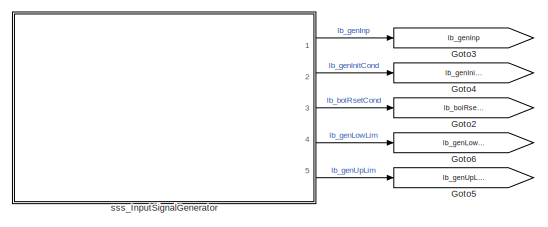
[diagram: root canvas - part 1/2, top left region]
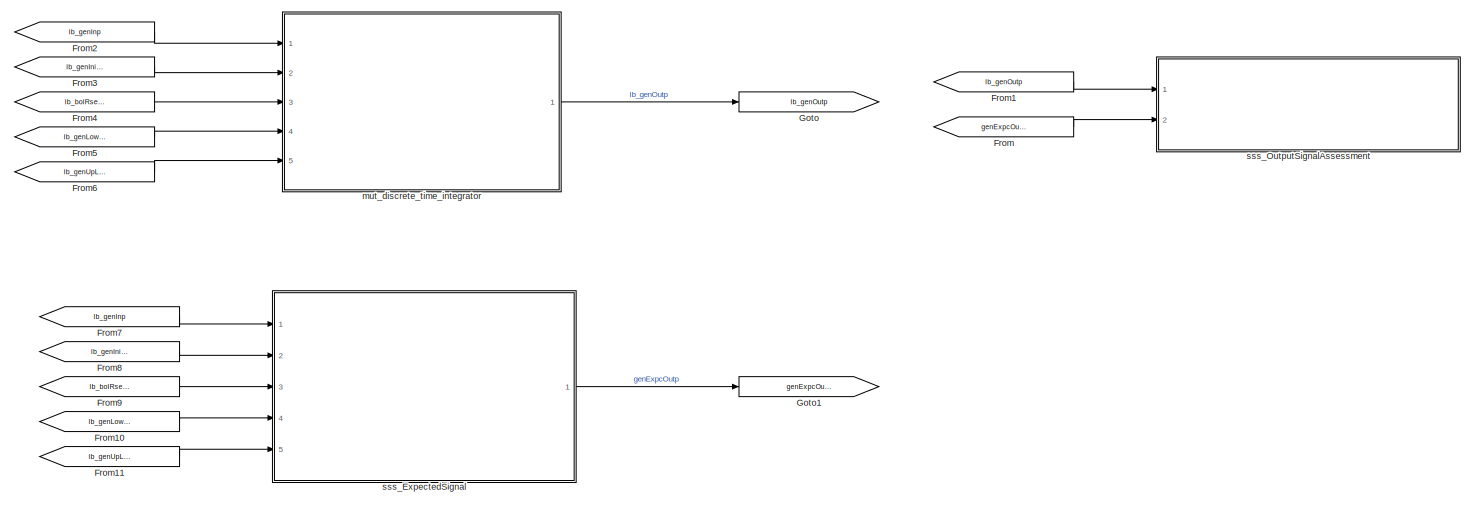
[diagram: root canvas - part 2/2, center side, full height]
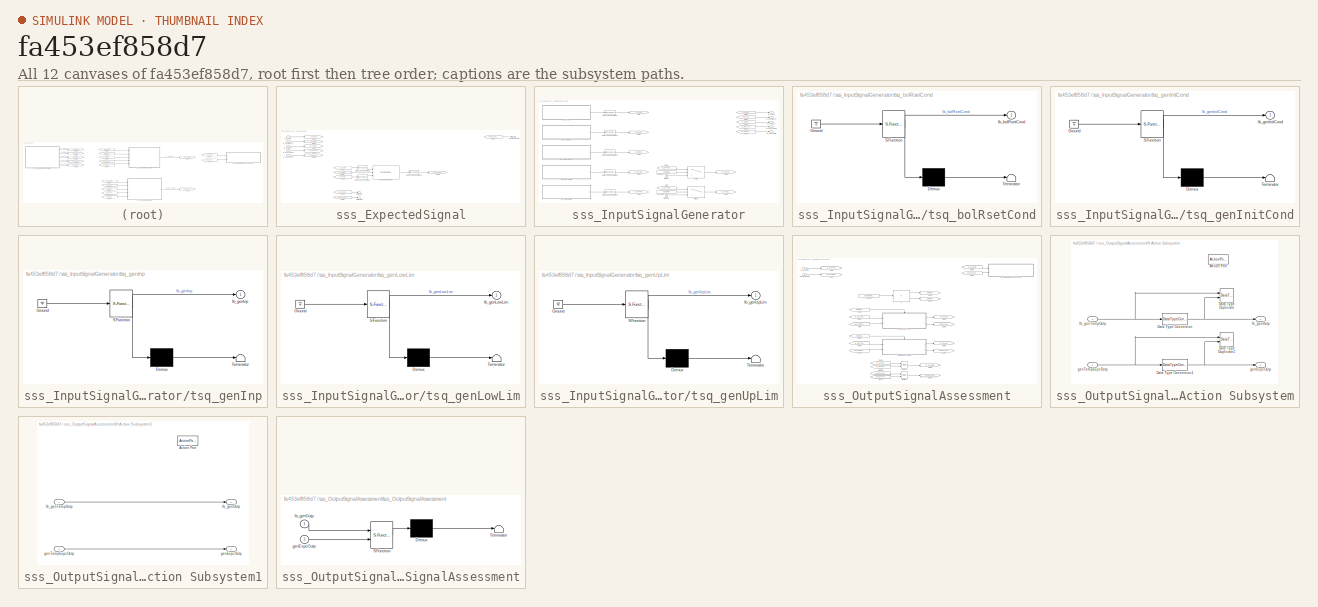
[diagram: thumbnail index - all 12 canvases of the model, root first then tree order]
MODEL slx_fa453ef858d7
KIND model
CONFIG AbsTol = auto
CONFIG EnableMultiTasking = off
CONFIG FixedStep = auto
CONFIG MaxStep = auto
CONFIG MinStep = auto
CONFIG RelTol = 1e-3
CONFIG SampleTimeConstraint = Unconstrained
CONFIG SolverName = VariableStepAuto
CONFIG StartTime = 0.0
CONFIG StopTime = 6
BLOCK [From] From
  GotoTag = genExpcOutp
BLOCK [From] From1
  GotoTag = lb_genOutp
BLOCK [From] From10
  GotoTag = lb_genLowLim
BLOCK [From] From11
  GotoTag = lb_genUpLim
BLOCK [From] From2
  GotoTag = lb_genInp
BLOCK [From] From3
  GotoTag = lb_genInitCond
BLOCK [From] From4
  GotoTag = lb_bolRsetCond
BLOCK [From] From5
  GotoTag = lb_genLowLim
BLOCK [From] From6
  GotoTag = lb_genUpLim
BLOCK [From] From7
  GotoTag = lb_genInp
BLOCK [From] From8
  GotoTag = lb_genInitCond
BLOCK [From] From9
  GotoTag = lb_bolRsetCond
BLOCK [Goto] Goto
  GotoTag = lb_genOutp
BLOCK [Goto] Goto1
  GotoTag = genExpcOutp
BLOCK [Goto] Goto2
  GotoTag = lb_bolRsetCond
BLOCK [Goto] Goto3
  GotoTag = lb_genInp
BLOCK [Goto] Goto4
  GotoTag = lb_genInitCond
BLOCK [Goto] Goto5
  GotoTag = lb_genUpLim
BLOCK [Goto] Goto6
  GotoTag = lb_genLowLim
BLOCK [ModelReference] mut_discrete_time_integrator
  ModelNameDialog = mut_discrete_time_integrator
  ModelReferenceVersion = 1.22
  Ports = [5, 1]
BLOCK [SubSystem] sss_ExpectedSignal
  Ports = [5, 1]
  RequestExecContextInheritance = off
BLOCK [DataTypeConversion] sss_ExpectedSignal/Data Type Conversion
  OutDataTypeStr = double
  RndMeth = Floor
  SaturateOnIntegerOverflow = off
BLOCK [DataTypeConversion] sss_ExpectedSignal/Data Type Conversion1
  OutDataTypeStr = double
  RndMeth = Floor
  SaturateOnIntegerOverflow = off
BLOCK [DataTypeConversion] sss_ExpectedSignal/Data Type Conversion2
  OutDataTypeStr = parOutpDataType
  RndMeth = Floor
  SaturateOnIntegerOverflow = off
BLOCK [DiscreteIntegrator] sss_ExpectedSignal/Discrete-Time Integrator
  ExternalReset = level
  ICPrevOutput = DiscIntNeverNeededParam
  ICPrevScaledInput = DiscIntNeverNeededParam
  InitialConditionSetting = Auto
  InitialConditionSource = external
  LimitOutput = on
  LowerSaturationLimit = double(parLowLimInitVal)
  Ports = [3, 1]
  SampleTime = double(parSampTime)
  UpperSaturationLimit = double(parUpLimInitVal)
  gainval = double(parIntgGain)
BLOCK [From] sss_ExpectedSignal/From
  GotoTag = lb_genInp
BLOCK [From] sss_ExpectedSignal/From1
  GotoTag = lb_genInitCond
BLOCK [From] sss_ExpectedSignal/From2
  GotoTag = lb_bolRsetCond
BLOCK [From] sss_ExpectedSignal/From3
  GotoTag = genExpcOutp
BLOCK [From] sss_ExpectedSignal/From4
  GotoTag = lb_genLowLim
BLOCK [From] sss_ExpectedSignal/From5
  GotoTag = lb_genUpLim
BLOCK [Goto] sss_ExpectedSignal/Goto
  GotoTag = lb_bolRsetCond
BLOCK [Goto] sss_ExpectedSignal/Goto1
  GotoTag = lb_genInp
BLOCK [Goto] sss_ExpectedSignal/Goto2
  GotoTag = lb_genInitCond
BLOCK [Goto] sss_ExpectedSignal/Goto3
  GotoTag = lb_genUpLim
BLOCK [Goto] sss_ExpectedSignal/Goto4
  GotoTag = lb_genLowLim
BLOCK [Goto] sss_ExpectedSignal/Goto5
  GotoTag = genExpcOutp
BLOCK [Terminator] sss_ExpectedSignal/Terminator
BLOCK [Terminator] sss_ExpectedSignal/Terminator1
BLOCK [Outport] sss_ExpectedSignal/genExpcOutp
BLOCK [Inport] sss_ExpectedSignal/lb_bolRset
  Port = 3
BLOCK [Inport] sss_ExpectedSignal/lb_genInitCond
  Port = 2
BLOCK [Inport] sss_ExpectedSignal/lb_genInp
BLOCK [Inport] sss_ExpectedSignal/lb_genLowLim
  Port = 4
BLOCK [Inport] sss_ExpectedSignal/lb_genUpLim
  Port = 5
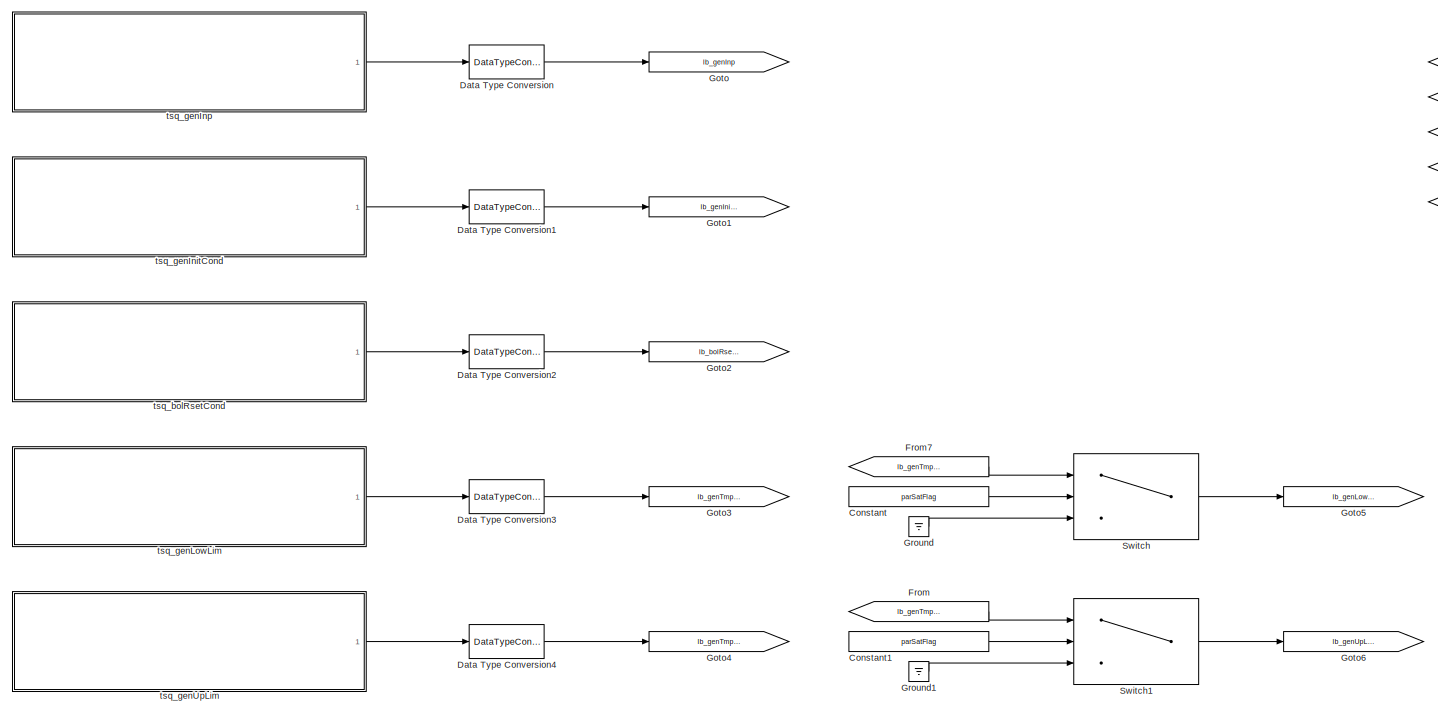
[diagram: sss_InputSignalGenerator - part 1/2, most of the canvas]
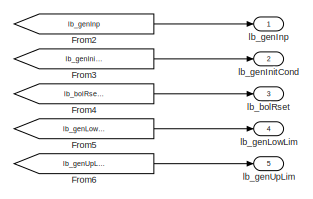
[diagram: sss_InputSignalGenerator - part 2/2, top right region]
BLOCK [SubSystem] sss_InputSignalGenerator
  Ports = [0, 5]
  RequestExecContextInheritance = off
BLOCK [Constant] sss_InputSignalGenerator/Constant
  Value = parSatFlag
BLOCK [Constant] sss_InputSignalGenerator/Constant1
  Value = parSatFlag
BLOCK [DataTypeConversion] sss_InputSignalGenerator/Data Type Conversion
  OutDataTypeStr = parInpDataType
  RndMeth = Floor
  SaturateOnIntegerOverflow = off
BLOCK [DataTypeConversion] sss_InputSignalGenerator/Data Type Conversion1
  OutDataTypeStr = parOutpDataType
  RndMeth = Floor
  SaturateOnIntegerOverflow = off
BLOCK [DataTypeConversion] sss_InputSignalGenerator/Data Type Conversion2
  OutDataTypeStr = boolean
  RndMeth = Floor
  SaturateOnIntegerOverflow = off
BLOCK [DataTypeConversion] sss_InputSignalGenerator/Data Type Conversion3
  OutDataTypeStr = parOutpDataType
  RndMeth = Floor
  SaturateOnIntegerOverflow = off
BLOCK [DataTypeConversion] sss_InputSignalGenerator/Data Type Conversion4
  OutDataTypeStr = parOutpDataType
  RndMeth = Floor
  SaturateOnIntegerOverflow = off
BLOCK [From] sss_InputSignalGenerator/From
  GotoTag = lb_genTmprUpLim
BLOCK [From] sss_InputSignalGenerator/From2
  GotoTag = lb_genInp
BLOCK [From] sss_InputSignalGenerator/From3
  GotoTag = lb_genInitCond
BLOCK [From] sss_InputSignalGenerator/From4
  GotoTag = lb_bolRsetCond
BLOCK [From] sss_InputSignalGenerator/From5
  GotoTag = lb_genLowLim
BLOCK [From] sss_InputSignalGenerator/From6
  GotoTag = lb_genUpLim
BLOCK [From] sss_InputSignalGenerator/From7
  GotoTag = lb_genTmprLowLim
BLOCK [Goto] sss_InputSignalGenerator/Goto
  GotoTag = lb_genInp
BLOCK [Goto] sss_InputSignalGenerator/Goto1
  GotoTag = lb_genInitCond
BLOCK [Goto] sss_InputSignalGenerator/Goto2
  GotoTag = lb_bolRsetCond
BLOCK [Goto] sss_InputSignalGenerator/Goto3
  GotoTag = lb_genTmprLowLim
BLOCK [Goto] sss_InputSignalGenerator/Goto4
  GotoTag = lb_genTmprUpLim
BLOCK [Goto] sss_InputSignalGenerator/Goto5
  GotoTag = lb_genLowLim
BLOCK [Goto] sss_InputSignalGenerator/Goto6
  GotoTag = lb_genUpLim
BLOCK [Ground] sss_InputSignalGenerator/Ground
BLOCK [Ground] sss_InputSignalGenerator/Ground1
BLOCK [Switch] sss_InputSignalGenerator/Switch
  Criteria = u2 ~= 0
  InputSameDT = off
  SaturateOnIntegerOverflow = off
BLOCK [Switch] sss_InputSignalGenerator/Switch1
  Criteria = u2 ~= 0
  InputSameDT = off
  SaturateOnIntegerOverflow = off
BLOCK [Outport] sss_InputSignalGenerator/lb_bolRset
  Port = 3
BLOCK [Outport] sss_InputSignalGenerator/lb_genInitCond
  Port = 2
BLOCK [Outport] sss_InputSignalGenerator/lb_genInp
BLOCK [Outport] sss_InputSignalGenerator/lb_genLowLim
  Port = 4
BLOCK [Outport] sss_InputSignalGenerator/lb_genUpLim
  Port = 5
BLOCK [SubSystem] sss_InputSignalGenerator/tsq_bolRsetCond
  ErrorFcn = Stateflow.Translate.translate
  PermitHierarchicalResolution = ExplicitOnly
  Ports = [0, 1]
  RequestExecContextInheritance = off
  SFBlockType = Test Sequence
  TreatAsAtomicUnit = on
BLOCK [Demux] sss_InputSignalGenerator/tsq_bolRsetCond/ Demux 
  Outputs = 1
  Ports = [1, 1]
BLOCK [Ground] sss_InputSignalGenerator/tsq_bolRsetCond/ Ground 
BLOCK [S-Function] sss_InputSignalGenerator/tsq_bolRsetCond/ SFunction 
  EnableBusSupport = on
  FunctionName = sf_sfun
  Parameters = parRsetCondInitVal,parTestProcRsetCondIndx
  PortCounts = [1 2]
  Ports = [1, 2]
  SFcnIsStateOwnerBlock = off
  SFunctionDeploymentMode = off
  Tag = Stateflow S-Function 3
BLOCK [Terminator] sss_InputSignalGenerator/tsq_bolRsetCond/ Terminator 
BLOCK [Outport] sss_InputSignalGenerator/tsq_bolRsetCond/lb_bolRsetCond
BLOCK [SubSystem] sss_InputSignalGenerator/tsq_genInitCond
  ErrorFcn = Stateflow.Translate.translate
  PermitHierarchicalResolution = ExplicitOnly
  Ports = [0, 1]
  RequestExecContextInheritance = off
  SFBlockType = Test Sequence
  TreatAsAtomicUnit = on
BLOCK [Demux] sss_InputSignalGenerator/tsq_genInitCond/ Demux 
  Outputs = 1
  Ports = [1, 1]
BLOCK [Ground] sss_InputSignalGenerator/tsq_genInitCond/ Ground 
BLOCK [S-Function] sss_InputSignalGenerator/tsq_genInitCond/ SFunction 
  EnableBusSupport = on
  FunctionName = sf_sfun
  Parameters = parInitCondInitVal,parTestProcInitCondIndx
  PortCounts = [1 2]
  Ports = [1, 2]
  SFcnIsStateOwnerBlock = off
  SFunctionDeploymentMode = off
  Tag = Stateflow S-Function 2
BLOCK [Terminator] sss_InputSignalGenerator/tsq_genInitCond/ Terminator 
BLOCK [Outport] sss_InputSignalGenerator/tsq_genInitCond/lb_genInitCond
BLOCK [SubSystem] sss_InputSignalGenerator/tsq_genInp
  ErrorFcn = Stateflow.Translate.translate
  PermitHierarchicalResolution = ExplicitOnly
  Ports = [0, 1]
  RequestExecContextInheritance = off
  SFBlockType = Test Sequence
  TreatAsAtomicUnit = on
BLOCK [Demux] sss_InputSignalGenerator/tsq_genInp/ Demux 
  Outputs = 1
  Ports = [1, 1]
BLOCK [Ground] sss_InputSignalGenerator/tsq_genInp/ Ground 
BLOCK [S-Function] sss_InputSignalGenerator/tsq_genInp/ SFunction 
  EnableBusSupport = on
  FunctionName = sf_sfun
  Parameters = parInpInitVal,parTestProcInpIndx
  PortCounts = [1 2]
  Ports = [1, 2]
  SFcnIsStateOwnerBlock = off
  SFunctionDeploymentMode = off
  Tag = Stateflow S-Function 4
BLOCK [Terminator] sss_InputSignalGenerator/tsq_genInp/ Terminator 
BLOCK [Outport] sss_InputSignalGenerator/tsq_genInp/lb_genInp
BLOCK [SubSystem] sss_InputSignalGenerator/tsq_genLowLim
  ErrorFcn = Stateflow.Translate.translate
  PermitHierarchicalResolution = ExplicitOnly
  Ports = [0, 1]
  RequestExecContextInheritance = off
  SFBlockType = Test Sequence
  TreatAsAtomicUnit = on
BLOCK [Demux] sss_InputSignalGenerator/tsq_genLowLim/ Demux 
  Outputs = 1
  Ports = [1, 1]
BLOCK [Ground] sss_InputSignalGenerator/tsq_genLowLim/ Ground 
BLOCK [S-Function] sss_InputSignalGenerator/tsq_genLowLim/ SFunction 
  EnableBusSupport = on
  FunctionName = sf_sfun
  Parameters = parLowLimInitVal,parTestProcLowLimIndx
  PortCounts = [1 2]
  Ports = [1, 2]
  SFcnIsStateOwnerBlock = off
  SFunctionDeploymentMode = off
  Tag = Stateflow S-Function 5
BLOCK [Terminator] sss_InputSignalGenerator/tsq_genLowLim/ Terminator 
BLOCK [Outport] sss_InputSignalGenerator/tsq_genLowLim/lb_genLowLim
BLOCK [SubSystem] sss_InputSignalGenerator/tsq_genUpLim
  ErrorFcn = Stateflow.Translate.translate
  PermitHierarchicalResolution = ExplicitOnly
  Ports = [0, 1]
  RequestExecContextInheritance = off
  SFBlockType = Test Sequence
  TreatAsAtomicUnit = on
BLOCK [Demux] sss_InputSignalGenerator/tsq_genUpLim/ Demux 
  Outputs = 1
  Ports = [1, 1]
BLOCK [Ground] sss_InputSignalGenerator/tsq_genUpLim/ Ground 
BLOCK [S-Function] sss_InputSignalGenerator/tsq_genUpLim/ SFunction 
  EnableBusSupport = on
  FunctionName = sf_sfun
  Parameters = parTestProcUpLimIndx,parUpLimInitVal
  PortCounts = [1 2]
  Ports = [1, 2]
  SFcnIsStateOwnerBlock = off
  SFunctionDeploymentMode = off
  Tag = Stateflow S-Function 7
BLOCK [Terminator] sss_InputSignalGenerator/tsq_genUpLim/ Terminator 
BLOCK [Outport] sss_InputSignalGenerator/tsq_genUpLim/lb_genUpLim
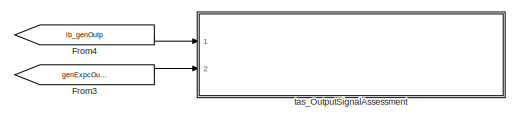
[diagram: sss_OutputSignalAssessment - part 1/3, top right region]
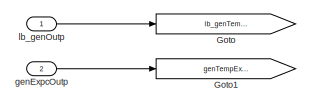
[diagram: sss_OutputSignalAssessment - part 2/3, top left region]
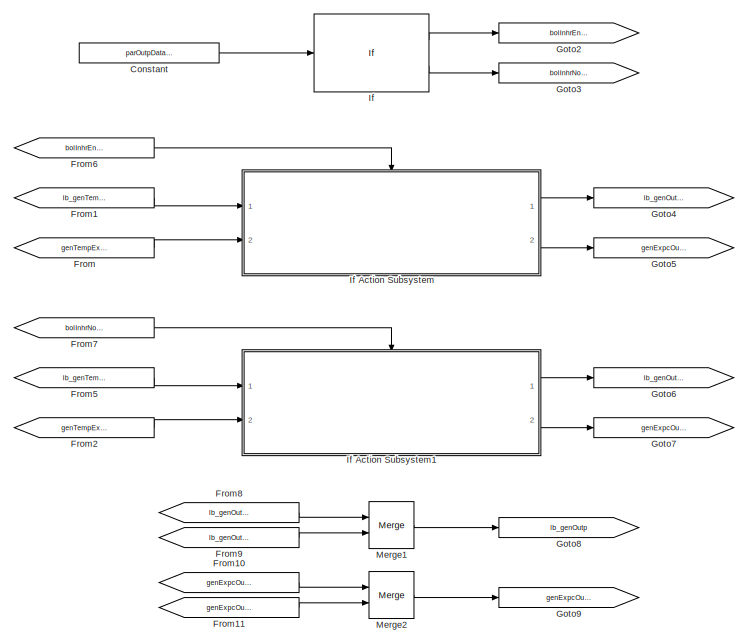
[diagram: sss_OutputSignalAssessment - part 3/3, center side, full height]
BLOCK [SubSystem] sss_OutputSignalAssessment
  Ports = [2]
  RequestExecContextInheritance = off
BLOCK [Constant] sss_OutputSignalAssessment/Constant
  Value = parOutpDataTypeInhrFlag
BLOCK [From] sss_OutputSignalAssessment/From
  GotoTag = genTempExpcOutp
BLOCK [From] sss_OutputSignalAssessment/From1
  GotoTag = lb_genTempOutp
BLOCK [From] sss_OutputSignalAssessment/From10
  GotoTag = genExpcOutp1
BLOCK [From] sss_OutputSignalAssessment/From11
  GotoTag = genExpcOutp2
BLOCK [From] sss_OutputSignalAssessment/From2
  GotoTag = genTempExpcOutp
BLOCK [From] sss_OutputSignalAssessment/From3
  GotoTag = genExpcOutp
BLOCK [From] sss_OutputSignalAssessment/From4
  GotoTag = lb_genOutp
BLOCK [From] sss_OutputSignalAssessment/From5
  GotoTag = lb_genTempOutp
BLOCK [From] sss_OutputSignalAssessment/From6
  GotoTag = bolInhrEnbl
BLOCK [From] sss_OutputSignalAssessment/From7
  GotoTag = bolInhrNotEnbl
BLOCK [From] sss_OutputSignalAssessment/From8
  GotoTag = lb_genOutp1
BLOCK [From] sss_OutputSignalAssessment/From9
  GotoTag = lb_genOutp2
BLOCK [Goto] sss_OutputSignalAssessment/Goto
  GotoTag = lb_genTempOutp
BLOCK [Goto] sss_OutputSignalAssessment/Goto1
  GotoTag = genTempExpcOutp
BLOCK [Goto] sss_OutputSignalAssessment/Goto2
  GotoTag = bolInhrEnbl
BLOCK [Goto] sss_OutputSignalAssessment/Goto3
  GotoTag = bolInhrNotEnbl
BLOCK [Goto] sss_OutputSignalAssessment/Goto4
  GotoTag = lb_genOutp1
BLOCK [Goto] sss_OutputSignalAssessment/Goto5
  GotoTag = genExpcOutp1
BLOCK [Goto] sss_OutputSignalAssessment/Goto6
  GotoTag = lb_genOutp2
BLOCK [Goto] sss_OutputSignalAssessment/Goto7
  GotoTag = genExpcOutp2
BLOCK [Goto] sss_OutputSignalAssessment/Goto8
  GotoTag = lb_genOutp
BLOCK [Goto] sss_OutputSignalAssessment/Goto9
  GotoTag = genExpcOutp
BLOCK [If] sss_OutputSignalAssessment/If
  IfExpression = u1
  Ports = [1, 2]
BLOCK [SubSystem] sss_OutputSignalAssessment/If Action Subsystem
  Ports = [2, 2, 0, 0, 0, 0, 0, 1]
  RequestExecContextInheritance = off
  TreatAsAtomicUnit = on
BLOCK [ActionPort] sss_OutputSignalAssessment/If Action Subsystem/Action Port
  ActionPortLabel = if(u1)
BLOCK [DataTypeConversion] sss_OutputSignalAssessment/If Action Subsystem/Data Type Conversion
  OutDataTypeStr = parOutpDataTypeInhr
  RndMeth = Floor
  SaturateOnIntegerOverflow = off
BLOCK [DataTypeConversion] sss_OutputSignalAssessment/If Action Subsystem/Data Type Conversion1
  OutDataTypeStr = parOutpDataTypeInhr
  RndMeth = Floor
  SaturateOnIntegerOverflow = off
BLOCK [DataTypeDuplicate] sss_OutputSignalAssessment/If Action Subsystem/Data Type Duplicate
  Ports = [2]
BLOCK [DataTypeDuplicate] sss_OutputSignalAssessment/If Action Subsystem/Data Type Duplicate1
  Ports = [2]
BLOCK [Outport] sss_OutputSignalAssessment/If Action Subsystem/genExpcOutp
  Port = 2
BLOCK [Inport] sss_OutputSignalAssessment/If Action Subsystem/genTempExpcOutp
  Port = 2
BLOCK [Outport] sss_OutputSignalAssessment/If Action Subsystem/lb_genOutp
BLOCK [Inport] sss_OutputSignalAssessment/If Action Subsystem/lb_genTempOutp
BLOCK [SubSystem] sss_OutputSignalAssessment/If Action Subsystem1
  Ports = [2, 2, 0, 0, 0, 0, 0, 1]
  RequestExecContextInheritance = off
  TreatAsAtomicUnit = on
BLOCK [ActionPort] sss_OutputSignalAssessment/If Action Subsystem1/Action Port
  ActionPortLabel = else
BLOCK [Outport] sss_OutputSignalAssessment/If Action Subsystem1/genExpcOutp
  Port = 2
BLOCK [Inport] sss_OutputSignalAssessment/If Action Subsystem1/genTempExpcOutp
  Port = 2
BLOCK [Outport] sss_OutputSignalAssessment/If Action Subsystem1/lb_genOutp
BLOCK [Inport] sss_OutputSignalAssessment/If Action Subsystem1/lb_genTempOutp
BLOCK [Merge] sss_OutputSignalAssessment/Merge1
  Ports = [2, 1]
BLOCK [Merge] sss_OutputSignalAssessment/Merge2
  Ports = [2, 1]
BLOCK [Inport] sss_OutputSignalAssessment/genExpcOutp
  Port = 2
BLOCK [Inport] sss_OutputSignalAssessment/lb_genOutp
BLOCK [SubSystem] sss_OutputSignalAssessment/tas_OutputSignalAssessment
  ErrorFcn = Stateflow.Translate.translate
  PermitHierarchicalResolution = ExplicitOnly
  Ports = [2]
  RequestExecContextInheritance = off
  SFBlockType = Test Sequence
  TreatAsAtomicUnit = on
BLOCK [Demux] sss_OutputSignalAssessment/tas_OutputSignalAssessment/ Demux 
  Outputs = 1
  Ports = [1, 1]
BLOCK [S-Function] sss_OutputSignalAssessment/tas_OutputSignalAssessment/ SFunction 
  EnableBusSupport = on
  FunctionName = sf_sfun
  Parameters = parTestTol
  PortCounts = [2 1]
  Ports = [2, 1]
  SFcnIsStateOwnerBlock = off
  SFunctionDeploymentMode = off
  Tag = Stateflow S-Function 1
BLOCK [Terminator] sss_OutputSignalAssessment/tas_OutputSignalAssessment/ Terminator 
BLOCK [Inport] sss_OutputSignalAssessment/tas_OutputSignalAssessment/genExpcOutp
  Port = 2
BLOCK [Inport] sss_OutputSignalAssessment/tas_OutputSignalAssessment/lb_genOutp
LINE From10:1 -> sss_ExpectedSignal:4
LINE From11:1 -> sss_ExpectedSignal:5
LINE From1:1 -> sss_OutputSignalAssessment:1
LINE From2:1 -> mut_discrete_time_integrator:1
LINE From3:1 -> mut_discrete_time_integrator:2
LINE From4:1 -> mut_discrete_time_integrator:3
LINE From5:1 -> mut_discrete_time_integrator:4
LINE From6:1 -> mut_discrete_time_integrator:5
LINE From7:1 -> sss_ExpectedSignal:1
LINE From8:1 -> sss_ExpectedSignal:2
LINE From9:1 -> sss_ExpectedSignal:3
LINE From:1 -> sss_OutputSignalAssessment:2
LINE mut_discrete_time_integrator:1 -> Goto:1
LINE sss_ExpectedSignal/Data Type Conversion1:1 -> sss_ExpectedSignal/Discrete-Time Integrator:3
LINE sss_ExpectedSignal/Data Type Conversion2:1 -> sss_ExpectedSignal/Goto5:1
LINE sss_ExpectedSignal/Data Type Conversion:1 -> sss_ExpectedSignal/Discrete-Time Integrator:1
LINE sss_ExpectedSignal/Discrete-Time Integrator:1 -> sss_ExpectedSignal/Data Type Conversion2:1
LINE sss_ExpectedSignal/From1:1 -> sss_ExpectedSignal/Data Type Conversion1:1
LINE sss_ExpectedSignal/From2:1 -> sss_ExpectedSignal/Discrete-Time Integrator:2
LINE sss_ExpectedSignal/From3:1 -> sss_ExpectedSignal/genExpcOutp:1
LINE sss_ExpectedSignal/From4:1 -> sss_ExpectedSignal/Terminator:1
LINE sss_ExpectedSignal/From5:1 -> sss_ExpectedSignal/Terminator1:1
LINE sss_ExpectedSignal/From:1 -> sss_ExpectedSignal/Data Type Conversion:1
LINE sss_ExpectedSignal/lb_bolRset:1 -> sss_ExpectedSignal/Goto:1
LINE sss_ExpectedSignal/lb_genInitCond:1 -> sss_ExpectedSignal/Goto2:1
LINE sss_ExpectedSignal/lb_genInp:1 -> sss_ExpectedSignal/Goto1:1
LINE sss_ExpectedSignal/lb_genLowLim:1 -> sss_ExpectedSignal/Goto4:1
LINE sss_ExpectedSignal/lb_genUpLim:1 -> sss_ExpectedSignal/Goto3:1
LINE sss_ExpectedSignal:1 -> Goto1:1
LINE sss_InputSignalGenerator/Constant1:1 -> sss_InputSignalGenerator/Switch1:2
LINE sss_InputSignalGenerator/Constant:1 -> sss_InputSignalGenerator/Switch:2
LINE sss_InputSignalGenerator/Data Type Conversion1:1 -> sss_InputSignalGenerator/Goto1:1
LINE sss_InputSignalGenerator/Data Type Conversion2:1 -> sss_InputSignalGenerator/Goto2:1
LINE sss_InputSignalGenerator/Data Type Conversion3:1 -> sss_InputSignalGenerator/Goto3:1
LINE sss_InputSignalGenerator/Data Type Conversion4:1 -> sss_InputSignalGenerator/Goto4:1
LINE sss_InputSignalGenerator/Data Type Conversion:1 -> sss_InputSignalGenerator/Goto:1
LINE sss_InputSignalGenerator/From2:1 -> sss_InputSignalGenerator/lb_genInp:1
LINE sss_InputSignalGenerator/From3:1 -> sss_InputSignalGenerator/lb_genInitCond:1
LINE sss_InputSignalGenerator/From4:1 -> sss_InputSignalGenerator/lb_bolRset:1
LINE sss_InputSignalGenerator/From5:1 -> sss_InputSignalGenerator/lb_genLowLim:1
LINE sss_InputSignalGenerator/From6:1 -> sss_InputSignalGenerator/lb_genUpLim:1
LINE sss_InputSignalGenerator/From7:1 -> sss_InputSignalGenerator/Switch:1
LINE sss_InputSignalGenerator/From:1 -> sss_InputSignalGenerator/Switch1:1
LINE sss_InputSignalGenerator/Ground1:1 -> sss_InputSignalGenerator/Switch1:3
LINE sss_InputSignalGenerator/Ground:1 -> sss_InputSignalGenerator/Switch:3
LINE sss_InputSignalGenerator/Switch1:1 -> sss_InputSignalGenerator/Goto6:1
LINE sss_InputSignalGenerator/Switch:1 -> sss_InputSignalGenerator/Goto5:1
LINE sss_InputSignalGenerator/tsq_bolRsetCond:1 -> sss_InputSignalGenerator/Data Type Conversion2:1
LINE sss_InputSignalGenerator/tsq_genInitCond:1 -> sss_InputSignalGenerator/Data Type Conversion1:1
LINE sss_InputSignalGenerator/tsq_genInp:1 -> sss_InputSignalGenerator/Data Type Conversion:1
LINE sss_InputSignalGenerator/tsq_genLowLim:1 -> sss_InputSignalGenerator/Data Type Conversion3:1
LINE sss_InputSignalGenerator/tsq_genUpLim:1 -> sss_InputSignalGenerator/Data Type Conversion4:1
LINE sss_InputSignalGenerator:1 -> Goto3:1
LINE sss_InputSignalGenerator:2 -> Goto4:1
LINE sss_InputSignalGenerator:3 -> Goto2:1
LINE sss_InputSignalGenerator:4 -> Goto6:1
LINE sss_InputSignalGenerator:5 -> Goto5:1
LINE sss_OutputSignalAssessment/Constant:1 -> sss_OutputSignalAssessment/If:1
LINE sss_OutputSignalAssessment/From10:1 -> sss_OutputSignalAssessment/Merge2:1
LINE sss_OutputSignalAssessment/From11:1 -> sss_OutputSignalAssessment/Merge2:2
LINE sss_OutputSignalAssessment/From1:1 -> sss_OutputSignalAssessment/If Action Subsystem:1
LINE sss_OutputSignalAssessment/From2:1 -> sss_OutputSignalAssessment/If Action Subsystem1:2
LINE sss_OutputSignalAssessment/From3:1 -> sss_OutputSignalAssessment/tas_OutputSignalAssessment:2
LINE sss_OutputSignalAssessment/From4:1 -> sss_OutputSignalAssessment/tas_OutputSignalAssessment:1
LINE sss_OutputSignalAssessment/From5:1 -> sss_OutputSignalAssessment/If Action Subsystem1:1
LINE sss_OutputSignalAssessment/From6:1 -> sss_OutputSignalAssessment/If Action Subsystem:ifaction
LINE sss_OutputSignalAssessment/From7:1 -> sss_OutputSignalAssessment/If Action Subsystem1:ifaction
LINE sss_OutputSignalAssessment/From8:1 -> sss_OutputSignalAssessment/Merge1:1
LINE sss_OutputSignalAssessment/From9:1 -> sss_OutputSignalAssessment/Merge1:2
LINE sss_OutputSignalAssessment/From:1 -> sss_OutputSignalAssessment/If Action Subsystem:2
NET sss_OutputSignalAssessment/If Action Subsystem/Data Type Conversion1:1 -> sss_OutputSignalAssessment/If Action Subsystem/Data Type Duplicate1:2, sss_OutputSignalAssessment/If Action Subsystem/genExpcOutp:1
NET sss_OutputSignalAssessment/If Action Subsystem/Data Type Conversion:1 -> sss_OutputSignalAssessment/If Action Subsystem/Data Type Duplicate:2, sss_OutputSignalAssessment/If Action Subsystem/lb_genOutp:1
NET sss_OutputSignalAssessment/If Action Subsystem/genTempExpcOutp:1 -> sss_OutputSignalAssessment/If Action Subsystem/Data Type Conversion1:1, sss_OutputSignalAssessment/If Action Subsystem/Data Type Duplicate1:1
NET sss_OutputSignalAssessment/If Action Subsystem/lb_genTempOutp:1 -> sss_OutputSignalAssessment/If Action Subsystem/Data Type Conversion:1, sss_OutputSignalAssessment/If Action Subsystem/Data Type Duplicate:1
LINE sss_OutputSignalAssessment/If Action Subsystem1/genTempExpcOutp:1 -> sss_OutputSignalAssessment/If Action Subsystem1/genExpcOutp:1
LINE sss_OutputSignalAssessment/If Action Subsystem1/lb_genTempOutp:1 -> sss_OutputSignalAssessment/If Action Subsystem1/lb_genOutp:1
LINE sss_OutputSignalAssessment/If Action Subsystem1:1 -> sss_OutputSignalAssessment/Goto6:1
LINE sss_OutputSignalAssessment/If Action Subsystem1:2 -> sss_OutputSignalAssessment/Goto7:1
LINE sss_OutputSignalAssessment/If Action Subsystem:1 -> sss_OutputSignalAssessment/Goto4:1
LINE sss_OutputSignalAssessment/If Action Subsystem:2 -> sss_OutputSignalAssessment/Goto5:1
LINE sss_OutputSignalAssessment/If:1 -> sss_OutputSignalAssessment/Goto2:1
LINE sss_OutputSignalAssessment/If:2 -> sss_OutputSignalAssessment/Goto3:1
LINE sss_OutputSignalAssessment/Merge1:1 -> sss_OutputSignalAssessment/Goto8:1
LINE sss_OutputSignalAssessment/Merge2:1 -> sss_OutputSignalAssessment/Goto9:1
LINE sss_OutputSignalAssessment/genExpcOutp:1 -> sss_OutputSignalAssessment/Goto1:1
LINE sss_OutputSignalAssessment/lb_genOutp:1 -> sss_OutputSignalAssessment/Goto:1
note: NET lines group one-source signal fan-out (src -> all destinations, sorted); 1:1 wires keep LINE
CHART sss_OutputSignalAssessment/tas_OutputSignalAssessment states=1 transitions=1
  STATE_LABEL "verify\nif genExpcOutp == 0\n    error = 0;\nelse\n    error = abs(double((lb_genOutp - genExpcOutp)/genExpcOutp));\nend\nverify(error <= parTestTol,'The actual and expected output matches');"
CHART sss_InputSignalGenerator/tsq_genInitCond states=1 transitions=1
  STATE_LABEL 'Init\nlb_genInitCond = double(parInitCondInitVal);'
CHART sss_InputSignalGenerator/tsq_bolRsetCond states=1 transitions=1
  STATE_LABEL 'Init\nlb_bolRsetCond = parRsetCondInitVal;'
CHART sss_InputSignalGenerator/tsq_genInp states=4 transitions=4
  STATE_LABEL 'Init\nlb_genInp = double(parInpInitVal);'
  STATE_LABEL 'TestProcedure_1\n\n'
  STATE_LABEL 'TestProcedure_1_ramp\nlb_genInp = double(parInpInitVal) + ramp(et);'
  STATE_LABEL 'TestProcedure_1_end'
  STATE_LABEL '[\nafter(5,sec)\n]'
  STATE_LABEL 'TestProcedure_1_ramp\nlb_genInp = double(parInpInitVal) + ramp(et);'
  STATE_LABEL 'TestProcedure_1_end'
CHART sss_InputSignalGenerator/tsq_genLowLim states=1 transitions=1
  STATE_LABEL 'Init\nlb_genLowLim = double(parLowLimInitVal);'
CHART sss_InputSignalGenerator/tsq_genUpLim states=1 transitions=1
  STATE_LABEL 'Init\nlb_genUpLim = double(parUpLimInitVal);'
